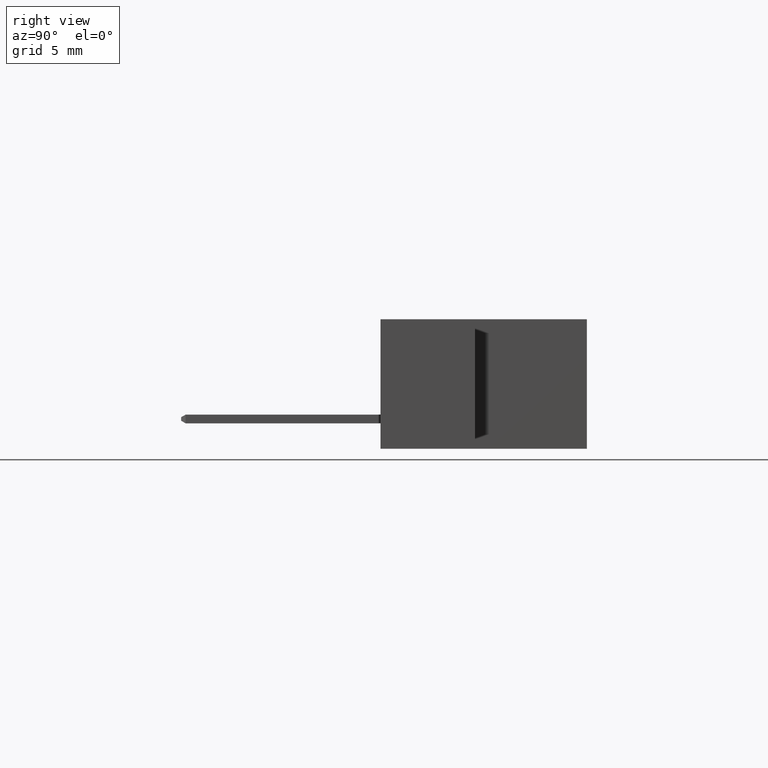
[diagram: clean part render]
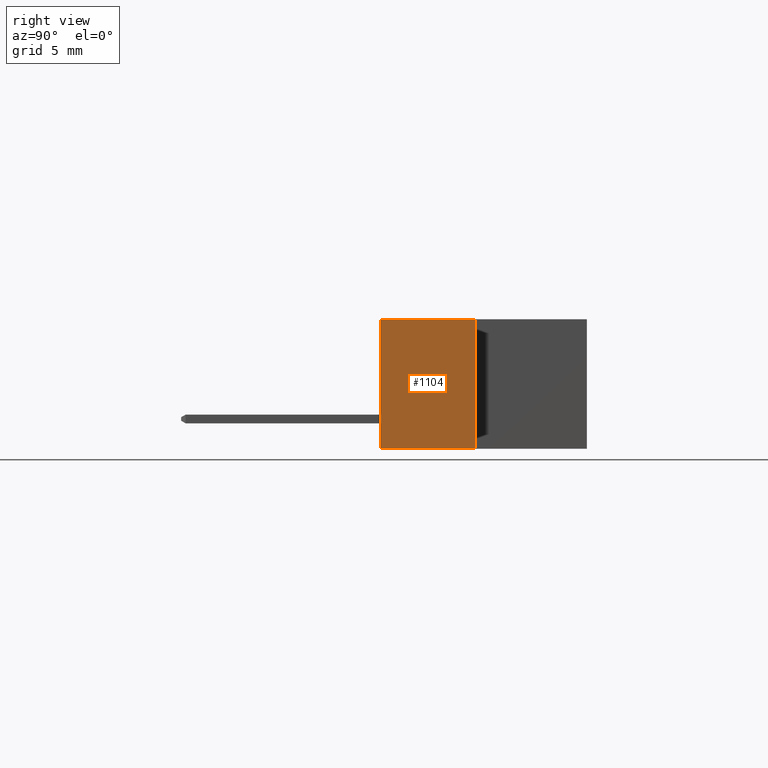
[diagram: same view with one face highlighted and labeled with its STEP entity id]
A machine part, right view. The second image highlights one B-rep face of the part: STEP entity #1104.
In plain terms, the highlighted planar face has unit normal (-1, 0, 0).
Its self-contained STEP definition (entity closure, byte-faithful):
#96 = CARTESIAN_POINT ( 'NONE',  ( 1.700000000000000000, 0.0000000000000000000, 0.0000000000000000000 ) ) ;
#384 = AXIS2_PLACEMENT_3D ( 'NONE', #7881, #8510, #4067 ) ;
#696 = ORIENTED_EDGE ( 'NONE', *, *, #9194, .F. ) ;
#876 = VERTEX_POINT ( 'NONE', #6855 ) ;
#956 = CARTESIAN_POINT ( 'NONE',  ( 1.700000000000000000, 0.0000000000000000000, -0.3700000000000000000 ) ) ;
#1056 = DIRECTION ( 'NONE',  ( -0.0000000000000000000, -1.000000000000000000, -0.0000000000000000000 ) ) ;
#1067 = CARTESIAN_POINT ( 'NONE',  ( 1.700000000000000000, 0.5899999999999999700, 0.0000000000000000000 ) ) ;
#1104 = ADVANCED_FACE ( 'NONE', ( #2617 ), #6217, .F. ) ;
#1584 = VERTEX_POINT ( 'NONE', #2702 ) ;
#1649 = EDGE_LOOP ( 'NONE', ( #9559, #5945, #7229, #696 ) ) ;
#2495 = VECTOR ( 'NONE', #9607, 39.37007874015748100 ) ;
#2617 = FACE_OUTER_BOUND ( 'NONE', #1649, .T. ) ;
#2694 = LINE ( 'NONE', #8432, #4515 ) ;
#2702 = CARTESIAN_POINT ( 'NONE',  ( 1.700000000000000000, 0.2699999999999999600, -0.3700000000000000000 ) ) ;
#2938 = CARTESIAN_POINT ( 'NONE',  ( 1.700000000000000000, 0.2699999999999999600, -0.3700000000000000000 ) ) ;
#3719 = EDGE_CURVE ( 'NONE', #7892, #7181, #2694, .T. ) ;
#4067 = DIRECTION ( 'NONE',  ( 0.0000000000000000000, 0.0000000000000000000, 1.000000000000000000 ) ) ;
#4449 = VECTOR ( 'NONE', #1056, 39.37007874015748100 ) ;
#4515 = VECTOR ( 'NONE', #5937, 39.37007874015748100 ) ;
#4900 = CARTESIAN_POINT ( 'NONE',  ( 1.700000000000000000, 0.5899999999999999700, -0.3700000000000000000 ) ) ;
#5937 = DIRECTION ( 'NONE',  ( 0.0000000000000000000, 0.0000000000000000000, -1.000000000000000000 ) ) ;
#5945 = ORIENTED_EDGE ( 'NONE', *, *, #7150, .T. ) ;
#6217 = PLANE ( 'NONE',  #384 ) ;
#6855 = CARTESIAN_POINT ( 'NONE',  ( 1.700000000000000000, 0.2699999999999999600, 0.0000000000000000000 ) ) ;
#7138 = DIRECTION ( 'NONE',  ( -0.0000000000000000000, -1.000000000000000000, -0.0000000000000000000 ) ) ;
#7150 = EDGE_CURVE ( 'NONE', #876, #7892, #8386, .T. ) ;
#7181 = VERTEX_POINT ( 'NONE', #956 ) ;
#7229 = ORIENTED_EDGE ( 'NONE', *, *, #3719, .T. ) ;
#7881 = CARTESIAN_POINT ( 'NONE',  ( 1.700000000000000000, 0.5899999999999999700, 0.0000000000000000000 ) ) ;
#7892 = VERTEX_POINT ( 'NONE', #96 ) ;
#8223 = EDGE_CURVE ( 'NONE', #876, #1584, #8475, .T. ) ;
#8386 = LINE ( 'NONE', #1067, #4449 ) ;
#8432 = CARTESIAN_POINT ( 'NONE',  ( 1.700000000000000000, 0.0000000000000000000, 0.0000000000000000000 ) ) ;
#8475 = LINE ( 'NONE', #2938, #2495 ) ;
#8510 = DIRECTION ( 'NONE',  ( -1.000000000000000000, 0.0000000000000000000, 0.0000000000000000000 ) ) ;
#9027 = LINE ( 'NONE', #4900, #9250 ) ;
#9194 = EDGE_CURVE ( 'NONE', #1584, #7181, #9027, .T. ) ;
#9250 = VECTOR ( 'NONE', #7138, 39.37007874015748100 ) ;
#9559 = ORIENTED_EDGE ( 'NONE', *, *, #8223, .F. ) ;
#9607 = DIRECTION ( 'NONE',  ( -0.0000000000000000000, -0.0000000000000000000, -1.000000000000000000 ) ) ;